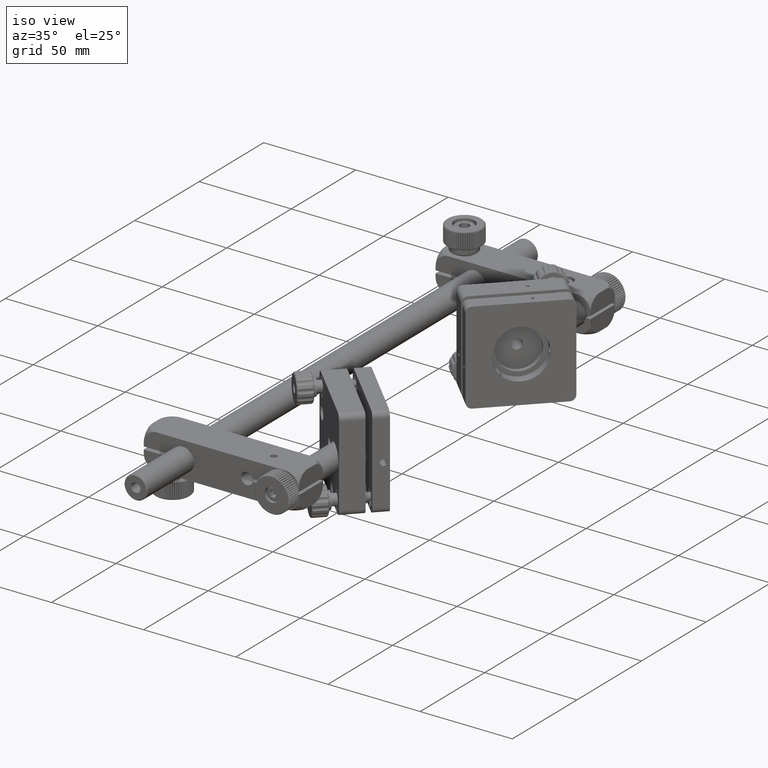
[diagram: clean part render]
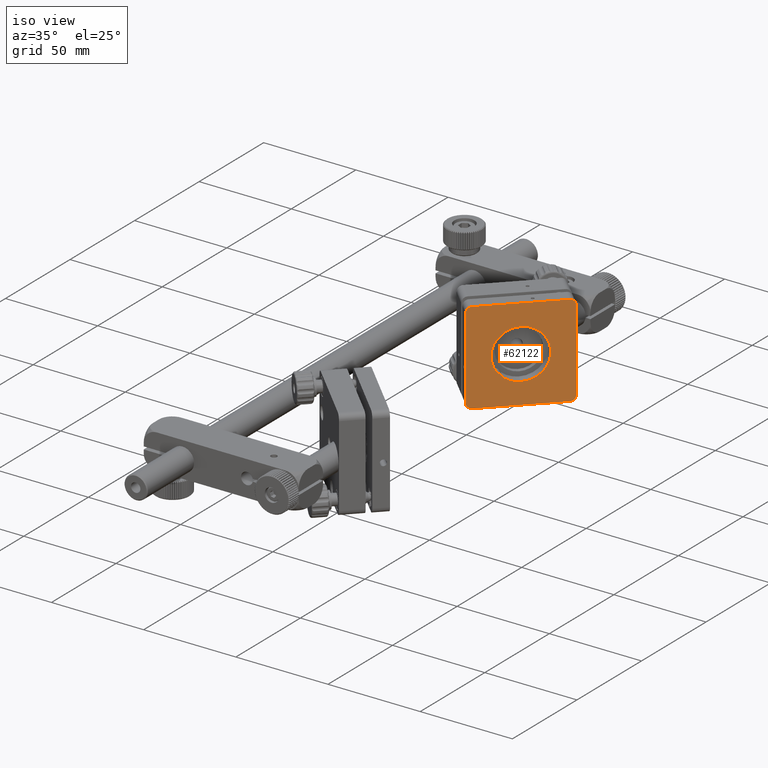
[diagram: same view with one face highlighted and labeled with its STEP entity id]
A machine part, iso view. The second image highlights one B-rep face of the part: STEP entity #62122.
In plain terms, the highlighted planar face has unit normal (-0.7071, 0.7071, -0).
Its self-contained STEP definition (entity closure, byte-faithful):
#207 = CARTESIAN_POINT ( 'NONE',  ( 75.19572218962760246, 244.0453433656178390, 25.00000000000000000 ) ) ;
#576 = DIRECTION ( 'NONE',  ( 0.000000000000000000, 0.000000000000000000, -1.000000000000000000 ) ) ;
#813 = EDGE_CURVE ( 'NONE', #27904, #61300, #2627, .T. ) ;
#1089 = VECTOR ( 'NONE', #49053, 1000.000000000000114 ) ;
#1269 = ORIENTED_EDGE ( 'NONE', *, *, #28373, .F. ) ;
#1505 = CIRCLE ( 'NONE', #7594, 3.000000000000002665 ) ;
#1521 = CARTESIAN_POINT ( 'NONE',  ( 54.78574007986288308, 223.6353612558534962, 9.226835583487838832 ) ) ;
#1601 = CARTESIAN_POINT ( 'NONE',  ( 75.19572218962767352, 244.0453433656178674, 21.99999999999997868 ) ) ;
#1692 = EDGE_CURVE ( 'NONE', #2249, #4605, #55476, .T. ) ;
#1725 = AXIS2_PLACEMENT_3D ( 'NONE', #58924, #20592, #576 ) ;
#1881 = DIRECTION ( 'NONE',  ( -0.7071067811865435759, 0.7071067811865515695, -1.689473676456517225E-16 ) ) ;
#2249 = VERTEX_POINT ( 'NONE', #22942 ) ;
#2350 = FACE_OUTER_BOUND ( 'NONE', #23546, .T. ) ;
#2356 = AXIS2_PLACEMENT_3D ( 'NONE', #42264, #26427, #7659 ) ;
#2627 = LINE ( 'NONE', #9467, #16908 ) ;
#2876 = VERTEX_POINT ( 'NONE', #36009 ) ;
#2983 = VERTEX_POINT ( 'NONE', #60684 ) ;
#3108 = CARTESIAN_POINT ( 'NONE',  ( 75.19572218962763088, 244.0453433656178674, -22.00000000000007461 ) ) ;
#3171 = CARTESIAN_POINT ( 'NONE',  ( 54.78574007986291861, 223.6353612558535247, -9.226835583488014692 ) ) ;
#3644 = VECTOR ( 'NONE', #8131, 1000.000000000000114 ) ;
#4434 = ORIENTED_EDGE ( 'NONE', *, *, #36187, .F. ) ;
#4605 = VERTEX_POINT ( 'NONE', #55766 ) ;
#5907 = CARTESIAN_POINT ( 'NONE',  ( 41.96170347385953647, 210.8113246498503486, -22.00000000000005684 ) ) ;
#5913 = VERTEX_POINT ( 'NONE', #61037 ) ;
#6489 = DIRECTION ( 'NONE',  ( -0.7071067811865435759, 0.7071067811865514585, -3.711499394598800403E-16 ) ) ;
#6929 = CARTESIAN_POINT ( 'NONE',  ( 75.19572218962761667, 244.0453433656178390, -25.00000000000009948 ) ) ;
#7105 = FACE_BOUND ( 'NONE', #17055, .T. ) ;
#7594 = AXIS2_PLACEMENT_3D ( 'NONE', #1601, #34618, #15550 ) ;
#7659 = DIRECTION ( 'NONE',  ( 0.000000000000000000, 0.000000000000000000, 1.000000000000000000 ) ) ;
#7833 = VERTEX_POINT ( 'NONE', #9325 ) ;
#8131 = DIRECTION ( 'NONE',  ( -0.7071067811865533459, -0.7071067811865416886, -1.615204757727414489E-17 ) ) ;
#8619 = DIRECTION ( 'NONE',  ( 0.000000000000000000, 0.000000000000000000, 1.000000000000000000 ) ) ;
#8688 = DIRECTION ( 'NONE',  ( 0.7071067811865435759, -0.7071067811865515695, 1.689473676456517225E-16 ) ) ;
#9325 = CARTESIAN_POINT ( 'NONE',  ( 53.48594378235554814, 222.3355649583462252, 10.01490865749320847 ) ) ;
#9467 = CARTESIAN_POINT ( 'NONE',  ( 41.96170347385953647, 210.8113246498503486, -22.00000000000005684 ) ) ;
#10024 = LINE ( 'NONE', #207, #1089 ) ;
#10124 = CARTESIAN_POINT ( 'NONE',  ( 41.96170347385952937, 210.8113246498503486, 21.99999999999995381 ) ) ;
#10355 = EDGE_CURVE ( 'NONE', #39309, #26900, #10024, .T. ) ;
#10627 = VERTEX_POINT ( 'NONE', #22374 ) ;
#10677 = CIRCLE ( 'NONE', #37090, 2.000000000000003553 ) ;
#10931 = CIRCLE ( 'NONE', #28031, 3.000000000000002665 ) ;
#10938 = PLANE ( 'NONE',  #28329 ) ;
#11328 = DIRECTION ( 'NONE',  ( 0.000000000000000000, 0.000000000000000000, 1.000000000000000000 ) ) ;
#12331 = ORIENTED_EDGE ( 'NONE', *, *, #10355, .F. ) ;
#12818 = VECTOR ( 'NONE', #13777, 1000.000000000000000 ) ;
#12886 = LINE ( 'NONE', #42431, #3644 ) ;
#13313 = EDGE_CURVE ( 'NONE', #37755, #48891, #46280, .T. ) ;
#13507 = CARTESIAN_POINT ( 'NONE',  ( 53.48594378235560498, 222.3355649583461684, -10.01490865749338788 ) ) ;
#13777 = DIRECTION ( 'NONE',  ( 1.543101783170283222E-16, -3.705750997410859836E-16, -1.000000000000000000 ) ) ;
#14389 = DIRECTION ( 'NONE',  ( 0.7071067811865435759, -0.7071067811865515695, 1.689473676456517225E-16 ) ) ;
#15550 = DIRECTION ( 'NONE',  ( 0.000000000000000000, 0.000000000000000000, -1.000000000000000000 ) ) ;
#16022 = ORIENTED_EDGE ( 'NONE', *, *, #17496, .T. ) ;
#16908 = VECTOR ( 'NONE', #38445, 1000.000000000000000 ) ;
#17055 = EDGE_LOOP ( 'NONE', ( #35323, #47327, #54265, #56618, #28729, #32852, #16022, #17819, #57489, #1269 ) ) ;
#17496 = EDGE_CURVE ( 'NONE', #2876, #7833, #62717, .T. ) ;
#17690 = DIRECTION ( 'NONE',  ( 0.000000000000000000, 0.000000000000000000, 1.000000000000000000 ) ) ;
#17819 = ORIENTED_EDGE ( 'NONE', *, *, #27492, .T. ) ;
#18097 = CARTESIAN_POINT ( 'NONE',  ( 59.63937300352341708, 228.4889941795139237, -7.774775120060329343E-14 ) ) ;
#19013 = VERTEX_POINT ( 'NONE', #28944 ) ;
#19710 = CARTESIAN_POINT ( 'NONE',  ( 53.11501499354571365, 221.9646361695363339, -6.864073507421274201 ) ) ;
#20456 = CARTESIAN_POINT ( 'NONE',  ( 75.19572218962760246, 244.0453433656178390, 25.00000000000000000 ) ) ;
#20592 = DIRECTION ( 'NONE',  ( 0.7071067811865435759, -0.7071067811865515695, 1.689473676456517225E-16 ) ) ;
#20897 = DIRECTION ( 'NONE',  ( -0.7071067811865435759, 0.7071067811865515695, -1.689473676456517225E-16 ) ) ;
#21675 = CIRCLE ( 'NONE', #34862, 13.50000000000002132 ) ;
#22170 = VERTEX_POINT ( 'NONE', #26875 ) ;
#22374 = CARTESIAN_POINT ( 'NONE',  ( 53.94163000618289061, 222.7912511821734256, -10.83150264148591191 ) ) ;
#22470 = DIRECTION ( 'NONE',  ( 0.000000000000000000, 0.000000000000000000, 1.000000000000000000 ) ) ;
#22542 = DIRECTION ( 'NONE',  ( -0.7071067811865435759, 0.7071067811865515695, -1.689473676456517225E-16 ) ) ;
#22663 = CIRCLE ( 'NONE', #35894, 2.000000000000002665 ) ;
#22942 = CARTESIAN_POINT ( 'NONE',  ( 59.63937300352339577, 228.4889941795138952, 13.49999999999994493 ) ) ;
#23546 = EDGE_LOOP ( 'NONE', ( #50711, #4434, #49090, #12331, #35455, #25253, #61690, #52924 ) ) ;
#23923 = EDGE_CURVE ( 'NONE', #2983, #2876, #22663, .T. ) ;
#23963 = CARTESIAN_POINT ( 'NONE',  ( 77.31704253318727638, 246.1666637091774703, -22.00000000000006395 ) ) ;
#24089 = AXIS2_PLACEMENT_3D ( 'NONE', #18097, #41873, #51367 ) ;
#24915 = CARTESIAN_POINT ( 'NONE',  ( 51.86119841047130308, 220.7108195864619802, 10.99999999999991651 ) ) ;
#25253 = ORIENTED_EDGE ( 'NONE', *, *, #813, .F. ) ;
#25407 = DIRECTION ( 'NONE',  ( -0.7071067811865435759, 0.7071067811865515695, -1.689473676456517225E-16 ) ) ;
#26252 = EDGE_CURVE ( 'NONE', #28693, #36877, #12886, .T. ) ;
#26427 = DIRECTION ( 'NONE',  ( -0.7071067811865435759, 0.7071067811865515695, -1.689473676456517225E-16 ) ) ;
#26875 = CARTESIAN_POINT ( 'NONE',  ( 77.31704253318729059, 246.1666637091774703, 21.99999999999994671 ) ) ;
#26900 = VERTEX_POINT ( 'NONE', #20456 ) ;
#27492 = EDGE_CURVE ( 'NONE', #7833, #4605, #31187, .T. ) ;
#27904 = VERTEX_POINT ( 'NONE', #5907 ) ;
#28031 = AXIS2_PLACEMENT_3D ( 'NONE', #62545, #42598, #8619 ) ;
#28329 = AXIS2_PLACEMENT_3D ( 'NONE', #55322, #6489, #40522 ) ;
#28373 = EDGE_CURVE ( 'NONE', #5913, #2249, #49403, .T. ) ;
#28409 = CARTESIAN_POINT ( 'NONE',  ( 59.63937300352341708, 228.4889941795139237, -7.774775120060329343E-14 ) ) ;
#28693 = VERTEX_POINT ( 'NONE', #6929 ) ;
#28729 = ORIENTED_EDGE ( 'NONE', *, *, #48006, .F. ) ;
#28944 = CARTESIAN_POINT ( 'NONE',  ( 51.98034403528870229, 220.8299652112793581, -8.057825421755405060 ) ) ;
#29395 = AXIS2_PLACEMENT_3D ( 'NONE', #24915, #14389, #59123 ) ;
#30939 = EDGE_CURVE ( 'NONE', #33918, #28693, #36001, .T. ) ;
#31187 = CIRCLE ( 'NONE', #54473, 2.000000000000003553 ) ;
#31559 = CARTESIAN_POINT ( 'NONE',  ( 59.63937300352341708, 228.4889941795139237, -7.774775120060329343E-14 ) ) ;
#31965 = CIRCLE ( 'NONE', #35019, 2.000000000000002665 ) ;
#32852 = ORIENTED_EDGE ( 'NONE', *, *, #23923, .T. ) ;
#32982 = EDGE_CURVE ( 'NONE', #10627, #37755, #10677, .T. ) ;
#33918 = VERTEX_POINT ( 'NONE', #58409 ) ;
#34025 = EDGE_CURVE ( 'NONE', #10627, #5913, #51072, .T. ) ;
#34543 = EDGE_CURVE ( 'NONE', #26900, #22170, #1505, .T. ) ;
#34618 = DIRECTION ( 'NONE',  ( -0.7071067811865435759, 0.7071067811865515695, -1.689473676456517225E-16 ) ) ;
#34862 = AXIS2_PLACEMENT_3D ( 'NONE', #41820, #46854, #36762 ) ;
#35019 = AXIS2_PLACEMENT_3D ( 'NONE', #19710, #25407, #39104 ) ;
#35323 = ORIENTED_EDGE ( 'NONE', *, *, #34025, .F. ) ;
#35455 = ORIENTED_EDGE ( 'NONE', *, *, #47627, .F. ) ;
#35894 = AXIS2_PLACEMENT_3D ( 'NONE', #51298, #61097, #17690 ) ;
#36001 = CIRCLE ( 'NONE', #59224, 3.000000000000002665 ) ;
#36009 = CARTESIAN_POINT ( 'NONE',  ( 52.55776317884595983, 221.4073843548366085, 8.702263059678347901 ) ) ;
#36105 = CARTESIAN_POINT ( 'NONE',  ( 44.08302381741924592, 212.9326449934100367, -25.00000000000011369 ) ) ;
#36187 = EDGE_CURVE ( 'NONE', #22170, #33918, #42690, .T. ) ;
#36762 = DIRECTION ( 'NONE',  ( 0.000000000000000000, 0.000000000000000000, -1.000000000000000000 ) ) ;
#36877 = VERTEX_POINT ( 'NONE', #36105 ) ;
#36902 = AXIS2_PLACEMENT_3D ( 'NONE', #31559, #56240, #50868 ) ;
#37090 = AXIS2_PLACEMENT_3D ( 'NONE', #3171, #22542, #59968 ) ;
#37755 = VERTEX_POINT ( 'NONE', #13507 ) ;
#38445 = DIRECTION ( 'NONE',  ( -9.855405407399601207E-17, 4.263312239841171474E-16, 1.000000000000000000 ) ) ;
#39104 = DIRECTION ( 'NONE',  ( 0.000000000000000000, 0.000000000000000000, 1.000000000000000000 ) ) ;
#39309 = VERTEX_POINT ( 'NONE', #41341 ) ;
#40522 = DIRECTION ( 'NONE',  ( -1.543101783170283222E-16, 3.705750997410859836E-16, 1.000000000000000000 ) ) ;
#41341 = CARTESIAN_POINT ( 'NONE',  ( 44.08302381741923170, 212.9326449934100367, 24.99999999999998579 ) ) ;
#41820 = CARTESIAN_POINT ( 'NONE',  ( 59.63937300352341708, 228.4889941795139237, -7.774775120060329343E-14 ) ) ;
#41873 = DIRECTION ( 'NONE',  ( 0.7071067811865435759, -0.7071067811865515695, 1.689473676456517225E-16 ) ) ;
#42264 = CARTESIAN_POINT ( 'NONE',  ( 44.08302381741924592, 212.9326449934100367, 21.99999999999996447 ) ) ;
#42431 = CARTESIAN_POINT ( 'NONE',  ( 75.19572218962761667, 244.0453433656178390, -25.00000000000009948 ) ) ;
#42598 = DIRECTION ( 'NONE',  ( -0.7071067811865435759, 0.7071067811865515695, -1.689473676456517225E-16 ) ) ;
#42690 = LINE ( 'NONE', #23963, #12818 ) ;
#46280 = CIRCLE ( 'NONE', #1725, 2.500000000000003997 ) ;
#46773 = DIRECTION ( 'NONE',  ( 0.000000000000000000, 0.000000000000000000, -1.000000000000000000 ) ) ;
#46854 = DIRECTION ( 'NONE',  ( 0.7071067811865435759, -0.7071067811865515695, 1.689473676456517225E-16 ) ) ;
#47327 = ORIENTED_EDGE ( 'NONE', *, *, #32982, .T. ) ;
#47627 = EDGE_CURVE ( 'NONE', #61300, #39309, #56034, .T. ) ;
#48006 = EDGE_CURVE ( 'NONE', #2983, #19013, #21675, .T. ) ;
#48891 = VERTEX_POINT ( 'NONE', #56832 ) ;
#49053 = DIRECTION ( 'NONE',  ( 0.7071067811865533459, 0.7071067811865416886, 1.615204757727409558E-17 ) ) ;
#49090 = ORIENTED_EDGE ( 'NONE', *, *, #34543, .F. ) ;
#49403 = CIRCLE ( 'NONE', #24089, 13.50000000000002132 ) ;
#50711 = ORIENTED_EDGE ( 'NONE', *, *, #30939, .F. ) ;
#50868 = DIRECTION ( 'NONE',  ( 0.000000000000000000, 0.000000000000000000, -1.000000000000000000 ) ) ;
#51072 = CIRCLE ( 'NONE', #36902, 13.50000000000002132 ) ;
#51298 = CARTESIAN_POINT ( 'NONE',  ( 53.11501499354567812, 221.9646361695363055, 6.864073507421101006 ) ) ;
#51367 = DIRECTION ( 'NONE',  ( 0.000000000000000000, 0.000000000000000000, -1.000000000000000000 ) ) ;
#52924 = ORIENTED_EDGE ( 'NONE', *, *, #26252, .F. ) ;
#54265 = ORIENTED_EDGE ( 'NONE', *, *, #13313, .T. ) ;
#54433 = AXIS2_PLACEMENT_3D ( 'NONE', #28409, #8688, #46773 ) ;
#54473 = AXIS2_PLACEMENT_3D ( 'NONE', #1521, #20897, #11328 ) ;
#55322 = CARTESIAN_POINT ( 'NONE',  ( 75.19572218962763088, 244.0453433656178674, -22.00000000000007461 ) ) ;
#55476 = CIRCLE ( 'NONE', #54433, 13.50000000000002132 ) ;
#55766 = CARTESIAN_POINT ( 'NONE',  ( 53.94163000618289061, 222.7912511821734256, 10.83150264148573960 ) ) ;
#56034 = CIRCLE ( 'NONE', #2356, 3.000000000000002665 ) ;
#56240 = DIRECTION ( 'NONE',  ( 0.7071067811865435759, -0.7071067811865515695, 1.689473676456517225E-16 ) ) ;
#56618 = ORIENTED_EDGE ( 'NONE', *, *, #56888, .T. ) ;
#56832 = CARTESIAN_POINT ( 'NONE',  ( 52.55776317884601667, 221.4073843548366369, -8.702263059678541524 ) ) ;
#56888 = EDGE_CURVE ( 'NONE', #48891, #19013, #31965, .T. ) ;
#57489 = ORIENTED_EDGE ( 'NONE', *, *, #1692, .F. ) ;
#58409 = CARTESIAN_POINT ( 'NONE',  ( 77.31704253318727638, 246.1666637091774703, -22.00000000000006395 ) ) ;
#58924 = CARTESIAN_POINT ( 'NONE',  ( 51.86119841047131729, 220.7108195864619518, -11.00000000000010836 ) ) ;
#59123 = DIRECTION ( 'NONE',  ( 0.000000000000000000, 0.000000000000000000, -1.000000000000000000 ) ) ;
#59224 = AXIS2_PLACEMENT_3D ( 'NONE', #3108, #1881, #22470 ) ;
#59703 = EDGE_CURVE ( 'NONE', #36877, #27904, #10931, .T. ) ;
#59968 = DIRECTION ( 'NONE',  ( 0.000000000000000000, 0.000000000000000000, 1.000000000000000000 ) ) ;
#60684 = CARTESIAN_POINT ( 'NONE',  ( 51.98034403528865965, 220.8299652112793581, 8.057825421755206108 ) ) ;
#61037 = CARTESIAN_POINT ( 'NONE',  ( 59.63937300352340287, 228.4889941795138952, -13.50000000000009770 ) ) ;
#61097 = DIRECTION ( 'NONE',  ( -0.7071067811865435759, 0.7071067811865515695, -1.689473676456517225E-16 ) ) ;
#61300 = VERTEX_POINT ( 'NONE', #10124 ) ;
#61690 = ORIENTED_EDGE ( 'NONE', *, *, #59703, .F. ) ;
#62122 = ADVANCED_FACE ( 'NONE', ( #7105, #2350 ), #10938, .F. ) ;
#62545 = CARTESIAN_POINT ( 'NONE',  ( 44.08302381741924592, 212.9326449934100083, -22.00000000000008882 ) ) ;
#62717 = CIRCLE ( 'NONE', #29395, 2.500000000000003997 ) ;